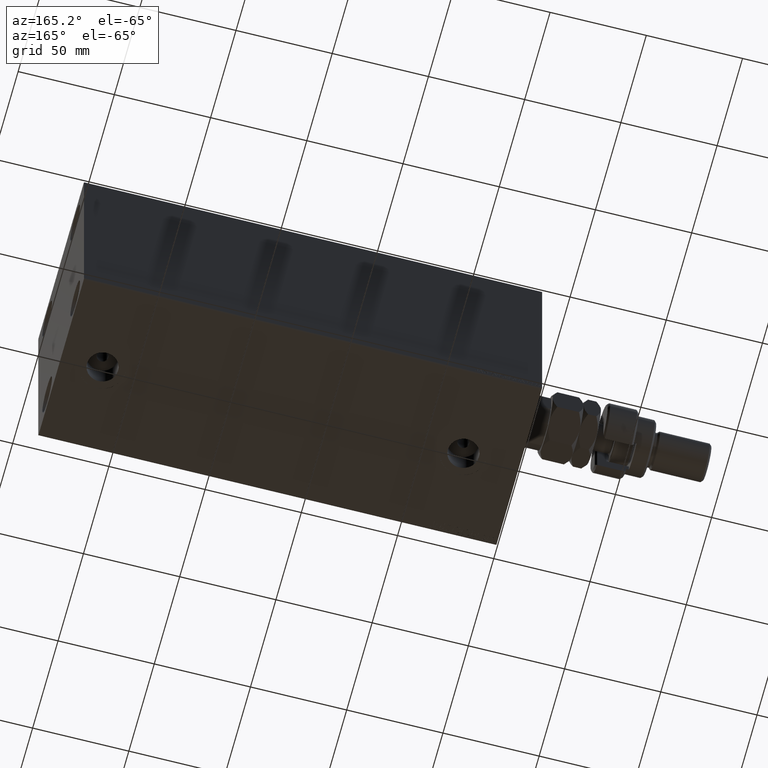
[diagram: clean part render]
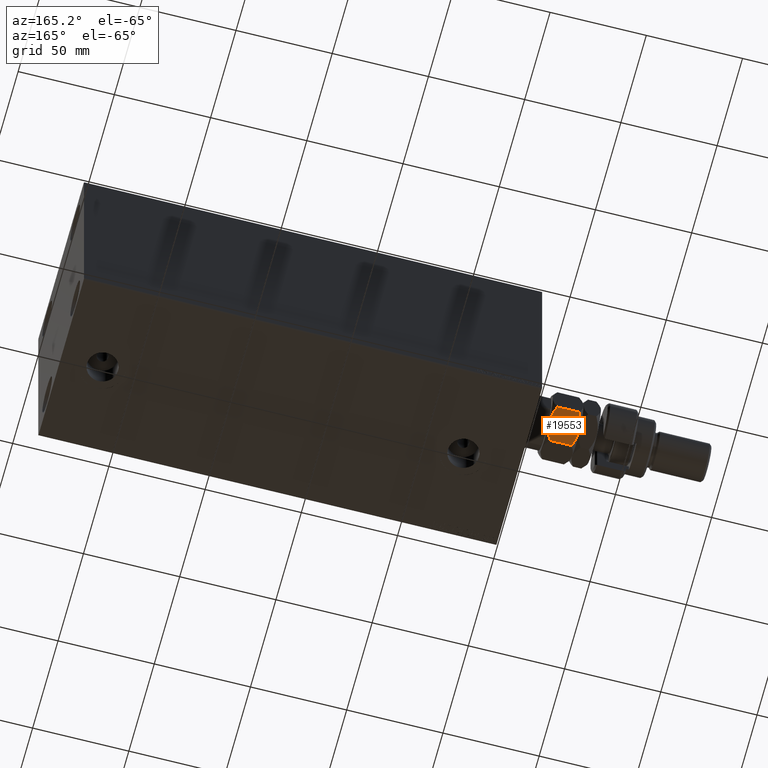
[diagram: same view with one face highlighted and labeled with its STEP entity id]
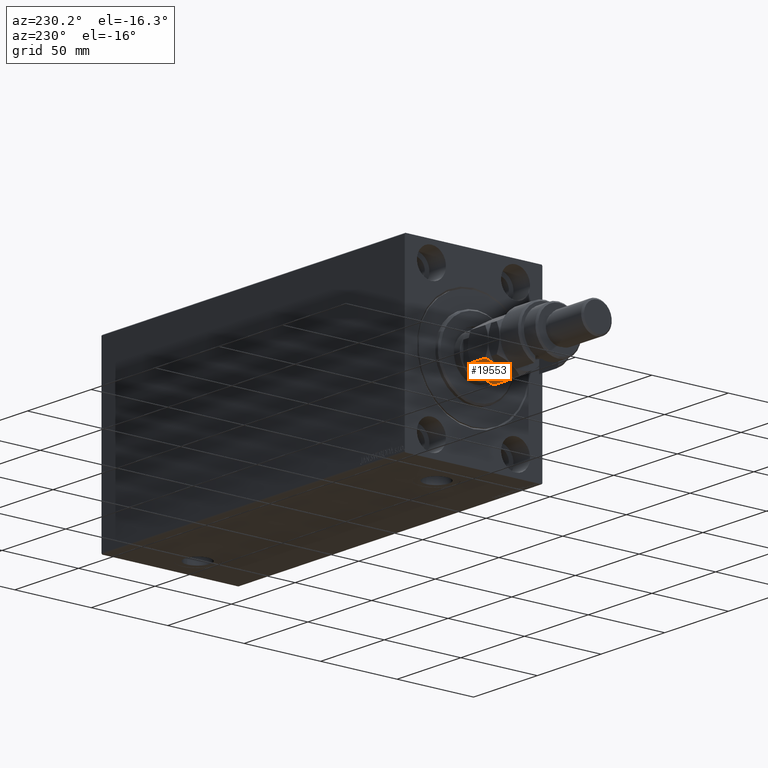
[diagram: same view with one face highlighted and labeled with its STEP entity id]
A machine part, auxiliary view. The second image highlights one B-rep face of the part: STEP entity #19553.
A second angle (auxiliary view) of the same face is appended — the face is thin or edge-on in the first view.
In plain terms, the highlighted planar face has unit normal (0, -0.5, 0.866).
Its self-contained STEP definition (entity closure, byte-faithful):
#47 = CARTESIAN_POINT ( 'NONE',  ( -14.99999999999999822, -1.516896874073658807, 15.92818277676011007 ) ) ;
#1278 = VERTEX_POINT ( 'NONE', #2043 ) ;
#2043 = CARTESIAN_POINT ( 'NONE',  ( -14.99999999999999645, -3.004629197474316485E-15, 16.00000000000000000 ) ) ;
#2256 = LINE ( 'NONE', #20274, #18734 ) ;
#2644 = VERTEX_POINT ( 'NONE', #45773 ) ;
#3032 = CARTESIAN_POINT ( 'NONE',  ( -14.99999999999999645, -8.660254037844389075, 2.320508075688762606 ) ) ;
#3275 = CARTESIAN_POINT ( 'NONE',  ( -14.99999999999999645, -7.987590979791842294, 1.984176546662486329 ) ) ;
#3290 = CARTESIAN_POINT ( 'NONE',  ( -15.00000000000000000, 8.660254037844392627, 16.00000000000000000 ) ) ;
#4018 = CARTESIAN_POINT ( 'NONE',  ( -14.99999999999999822, 0.3816858437404692661, -3.491469808582225998E-15 ) ) ;
#4177 = CARTESIAN_POINT ( 'NONE',  ( -14.99999999999999645, -7.300329060372325429, 14.33030584635917393 ) ) ;
#4233 = CARTESIAN_POINT ( 'NONE',  ( -14.99999999999999822, 5.891877557735400117, 14.89726549906047381 ) ) ;
#4316 = VERTEX_POINT ( 'NONE', #25966 ) ;
#4652 = CARTESIAN_POINT ( 'NONE',  ( -14.99999999999999822, -7.987879721624087992, 14.01567908242139282 ) ) ;
#4853 = EDGE_CURVE ( 'NONE', #4316, #2644, #2256, .T. ) ;
#4979 = CARTESIAN_POINT ( 'NONE',  ( -14.99999999999999645, 7.987879721624096874, 1.984320917578621835 ) ) ;
#5936 = CARTESIAN_POINT ( 'NONE',  ( -15.00000000000000000, 8.660254037844394404, 2.320508075688769711 ) ) ;
#7354 = ORIENTED_EDGE ( 'NONE', *, *, #13295, .T. ) ;
#7654 = CARTESIAN_POINT ( 'NONE',  ( -14.99999999999999645, -3.004629197474316485E-15, 16.00000000000000000 ) ) ;
#7833 = CARTESIAN_POINT ( 'NONE',  ( -14.99999999999999645, -3.004629197474316485E-15, 16.00000000000000000 ) ) ;
#7990 = ORIENTED_EDGE ( 'NONE', *, *, #21752, .F. ) ;
#8521 = EDGE_LOOP ( 'NONE', ( #24832, #39492, #27669, #7990, #7354, #24595 ) ) ;
#8867 = CARTESIAN_POINT ( 'NONE',  ( -14.99999999999999822, 7.300329060372334311, 1.669694153640834955 ) ) ;
#9490 = DIRECTION ( 'NONE',  ( -0.000000000000000000, -0.000000000000000000, -1.000000000000000000 ) ) ;
#10803 = CARTESIAN_POINT ( 'NONE',  ( -15.00000000000000000, 7.987590979791845847, 14.01582345333751789 ) ) ;
#10827 = DIRECTION ( 'NONE',  ( 1.000000000000000000, 2.003086131649544964E-16, -0.000000000000000000 ) ) ;
#11522 = CARTESIAN_POINT ( 'NONE',  ( -15.00000000000000178, 7.301344312447437979, 14.32986304731390526 ) ) ;
#11542 = CARTESIAN_POINT ( 'NONE',  ( -15.00000000000000000, 3.735400403320778828, 0.4426250994506696901 ) ) ;
#11943 = CARTESIAN_POINT ( 'NONE',  ( -14.99999999999999645, -3.735400403320779272, 15.55737490054933936 ) ) ;
#13287 = B_SPLINE_CURVE_WITH_KNOTS ( 'NONE', 3,
 ( #3032, #3275, #20216, #35092, #22497, #33943, #41489, #45142 ),
 .UNSPECIFIED., .F., .F.,
 ( 4, 2, 2, 4 ),
 ( 0.02387628527307378290, 0.02613482112973649144, 0.02839335698639919997, 0.03291042869972461704 ),
 .UNSPECIFIED. ) ;
#13295 = EDGE_CURVE ( 'NONE', #19517, #24208, #35784, .T. ) ;
#14890 = CARTESIAN_POINT ( 'NONE',  ( -14.99999999999999467, -5.890999289811420958, 14.89758491968458820 ) ) ;
#14944 = CARTESIAN_POINT ( 'NONE',  ( -15.00000000000000000, 1.527574731641582639, 16.00000000000000711 ) ) ;
#16637 = VECTOR ( 'NONE', #9490, 1000.000000000000000 ) ;
#17111 = CARTESIAN_POINT ( 'NONE',  ( -15.00000000000000000, 5.178726290334382476, 0.8537269996444443176 ) ) ;
#17415 = CARTESIAN_POINT ( 'NONE',  ( -15.00000000000000000, 8.660254037844392627, 13.67949192431123429 ) ) ;
#18734 = VECTOR ( 'NONE', #27584, 1000.000000000000000 ) ;
#18857 = CARTESIAN_POINT ( 'NONE',  ( -15.00000000000000178, 1.516896874073655255, 0.07181722323989069012 ) ) ;
#19020 = CARTESIAN_POINT ( 'NONE',  ( -14.99999999999999645, -8.660254037844389075, 13.67949192431124139 ) ) ;
#19078 = CARTESIAN_POINT ( 'NONE',  ( -15.00000000000000000, 5.176035048062466615, 15.14719616142215308 ) ) ;
#19517 = VERTEX_POINT ( 'NONE', #17415 ) ;
#19553 = ADVANCED_FACE ( 'NONE', ( #44195 ), #32274, .F. ) ;
#19735 = EDGE_CURVE ( 'NONE', #24688, #24208, #32712, .T. ) ;
#20216 = CARTESIAN_POINT ( 'NONE',  ( -14.99999999999999645, -7.301344312447434426, 1.670136952686098741 ) ) ;
#20274 = CARTESIAN_POINT ( 'NONE',  ( -14.99999999999999645, -8.660254037844389075, 16.00000000000000000 ) ) ;
#21159 = CARTESIAN_POINT ( 'NONE',  ( -15.00000000000000000, 8.660254037844392627, 16.00000000000000000 ) ) ;
#21752 = EDGE_CURVE ( 'NONE', #19517, #1278, #37801, .T. ) ;
#22497 = CARTESIAN_POINT ( 'NONE',  ( -14.99999999999999467, -5.176035048062463062, 0.8528038385778453634 ) ) ;
#22677 = CARTESIAN_POINT ( 'NONE',  ( -15.00000000000000178, -0.3816858437404726523, 16.00000000000001066 ) ) ;
#23107 = EDGE_CURVE ( 'NONE', #2644, #24688, #13287, .T. ) ;
#24101 = B_SPLINE_CURVE_WITH_KNOTS ( 'NONE', 3,
 ( #7833, #22677, #37538, #47, #30693, #30446, #11943, #26805, #14890, #4177, #4652, #19020 ),
 .UNSPECIFIED., .F., .F.,
 ( 4, 2, 2, 2, 2, 4 ),
 ( 0.03291042869972462398, 0.03403908204310903546, 0.03516773538649344694, 0.03742504207326226989, 0.03968234876003109979, 0.04193965544679992274 ),
 .UNSPECIFIED. ) ;
#24208 = VERTEX_POINT ( 'NONE', #46060 ) ;
#24595 = ORIENTED_EDGE ( 'NONE', *, *, #19735, .F. ) ;
#24688 = VERTEX_POINT ( 'NONE', #37854 ) ;
#24832 = ORIENTED_EDGE ( 'NONE', *, *, #23107, .F. ) ;
#25966 = CARTESIAN_POINT ( 'NONE',  ( -14.99999999999999645, -8.660254037844389075, 13.67949192431124139 ) ) ;
#26805 = CARTESIAN_POINT ( 'NONE',  ( -14.99999999999999822, -5.178726290334378035, 15.14627300035556345 ) ) ;
#27496 = EDGE_CURVE ( 'NONE', #1278, #4316, #24101, .T. ) ;
#27584 = DIRECTION ( 'NONE',  ( -0.000000000000000000, -0.000000000000000000, -1.000000000000000000 ) ) ;
#27669 = ORIENTED_EDGE ( 'NONE', *, *, #27496, .F. ) ;
#30055 = CARTESIAN_POINT ( 'NONE',  ( -15.00000000000000000, 1.890862710942016633, 0.1142538058331583339 ) ) ;
#30446 = CARTESIAN_POINT ( 'NONE',  ( -14.99999999999999645, -3.004330627448763114, 15.71971113554880972 ) ) ;
#30693 = CARTESIAN_POINT ( 'NONE',  ( -14.99999999999999822, -1.890862710942014857, 15.88574619416684541 ) ) ;
#32274 = PLANE ( 'NONE',  #33849 ) ;
#32712 = B_SPLINE_CURVE_WITH_KNOTS ( 'NONE', 3,
 ( #37378, #4018, #37618, #18857, #30055, #44919, #11542, #17111, #35406, #8867, #4979, #5936 ),
 .UNSPECIFIED., .F., .F.,
 ( 4, 2, 2, 2, 2, 4 ),
 ( 0.03291042869972461704, 0.03403908204310903546, 0.03516773538649344694, 0.03742504207326227683, 0.03968234876003110673, 0.04193965544679993662 ),
 .UNSPECIFIED. ) ;
#33849 = AXIS2_PLACEMENT_3D ( 'NONE', #3290, #10827, #40066 ) ;
#33943 = CARTESIAN_POINT ( 'NONE',  ( -14.99999999999999645, -3.008020699068712389, 0.2357602839062925004 ) ) ;
#35092 = CARTESIAN_POINT ( 'NONE',  ( -14.99999999999999112, -5.891877557735397453, 1.102734500939527518 ) ) ;
#35406 = CARTESIAN_POINT ( 'NONE',  ( -14.99999999999999822, 5.890999289811424511, 1.102415080315420015 ) ) ;
#35784 = LINE ( 'NONE', #21159, #16637 ) ;
#36874 = CARTESIAN_POINT ( 'NONE',  ( -15.00000000000000000, 3.008020699068715054, 15.76423971609371222 ) ) ;
#37378 = CARTESIAN_POINT ( 'NONE',  ( -15.00000000000000000, -3.004629197474317274E-15, 0.000000000000000000 ) ) ;
#37538 = CARTESIAN_POINT ( 'NONE',  ( -15.00000000000000000, -0.7629267201675442589, 15.98531533915807579 ) ) ;
#37618 = CARTESIAN_POINT ( 'NONE',  ( -14.99999999999999822, 0.7629267201675393739, 0.01468466084192471960 ) ) ;
#37801 = B_SPLINE_CURVE_WITH_KNOTS ( 'NONE', 3,
 ( #41009, #10803, #11522, #4233, #19078, #36874, #14944, #7654 ),
 .UNSPECIFIED., .F., .F.,
 ( 4, 2, 2, 4 ),
 ( 0.02387628527307378290, 0.02613482112973649490, 0.02839335698639920344, 0.03291042869972462398 ),
 .UNSPECIFIED. ) ;
#37854 = CARTESIAN_POINT ( 'NONE',  ( -15.00000000000000000, -3.004629197474317274E-15, 0.000000000000000000 ) ) ;
#39492 = ORIENTED_EDGE ( 'NONE', *, *, #4853, .F. ) ;
#40066 = DIRECTION ( 'NONE',  ( -2.003086131649544964E-16, 1.000000000000000000, 0.000000000000000000 ) ) ;
#41009 = CARTESIAN_POINT ( 'NONE',  ( -15.00000000000000000, 8.660254037844392627, 13.67949192431123429 ) ) ;
#41489 = CARTESIAN_POINT ( 'NONE',  ( -15.00000000000000355, -1.527574731641586192, -3.659182332138578254E-15 ) ) ;
#44195 = FACE_OUTER_BOUND ( 'NONE', #8521, .T. ) ;
#44919 = CARTESIAN_POINT ( 'NONE',  ( -15.00000000000000000, 3.004330627448767110, 0.2802888644511979388 ) ) ;
#45142 = CARTESIAN_POINT ( 'NONE',  ( -15.00000000000000000, -3.004629197474317274E-15, 0.000000000000000000 ) ) ;
#45773 = CARTESIAN_POINT ( 'NONE',  ( -14.99999999999999645, -8.660254037844389075, 2.320508075688762606 ) ) ;
#46060 = CARTESIAN_POINT ( 'NONE',  ( -15.00000000000000000, 8.660254037844394404, 2.320508075688769711 ) ) ;